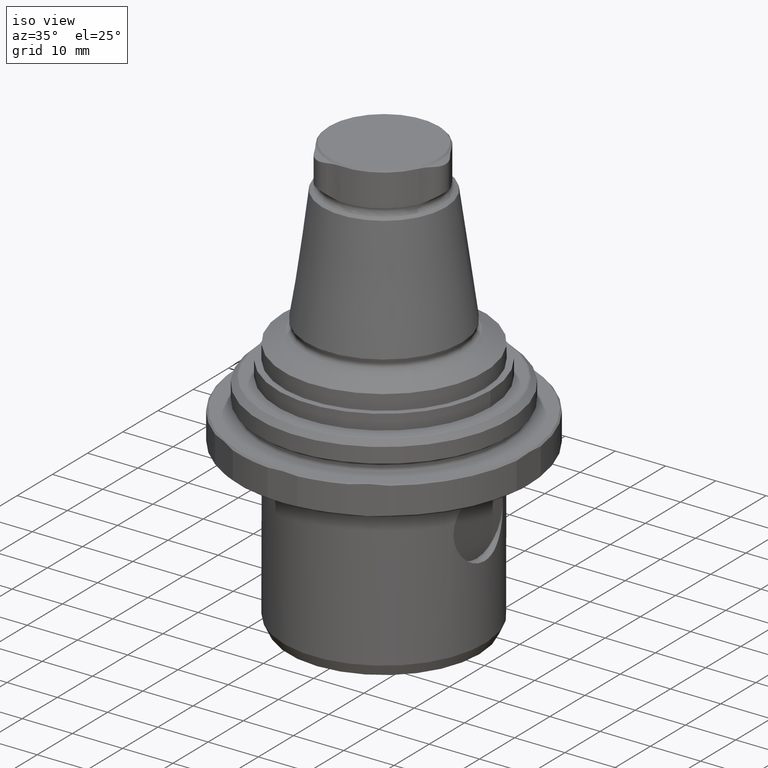
[diagram: clean part render]
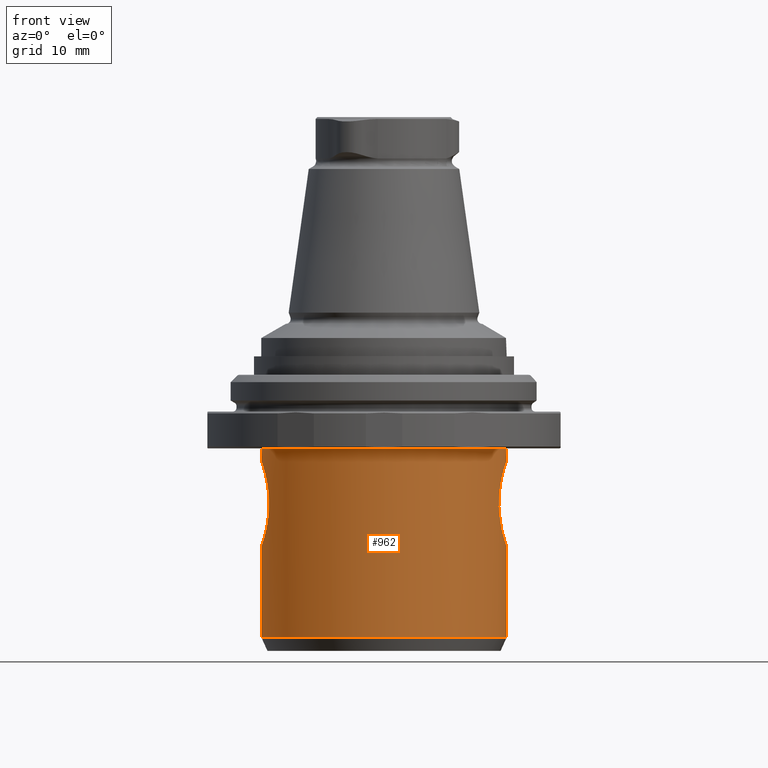
[diagram: tour spotlight — one face highlighted and labeled with its STEP entity id]
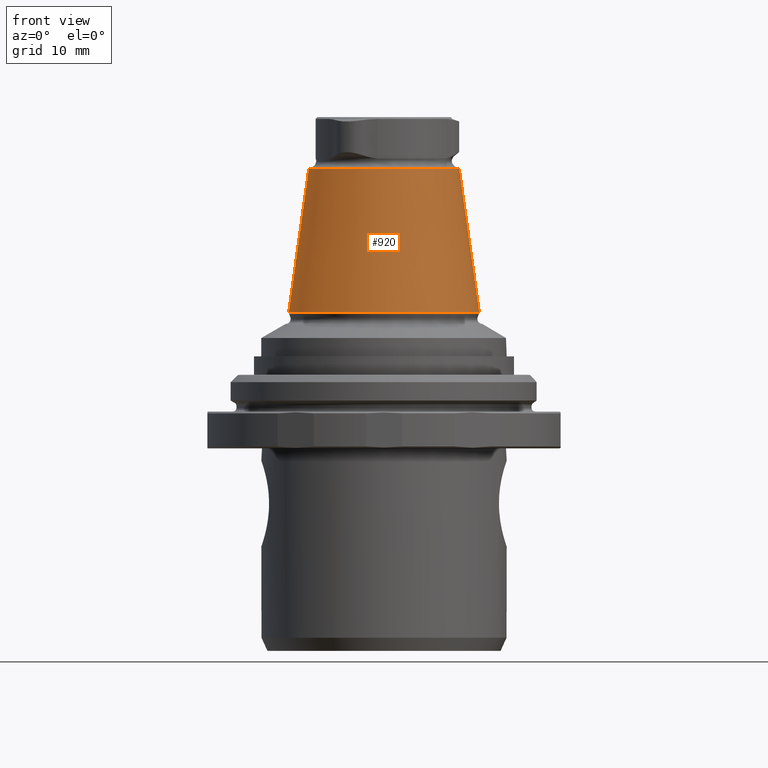
[diagram: tour spotlight — one face highlighted and labeled with its STEP entity id]
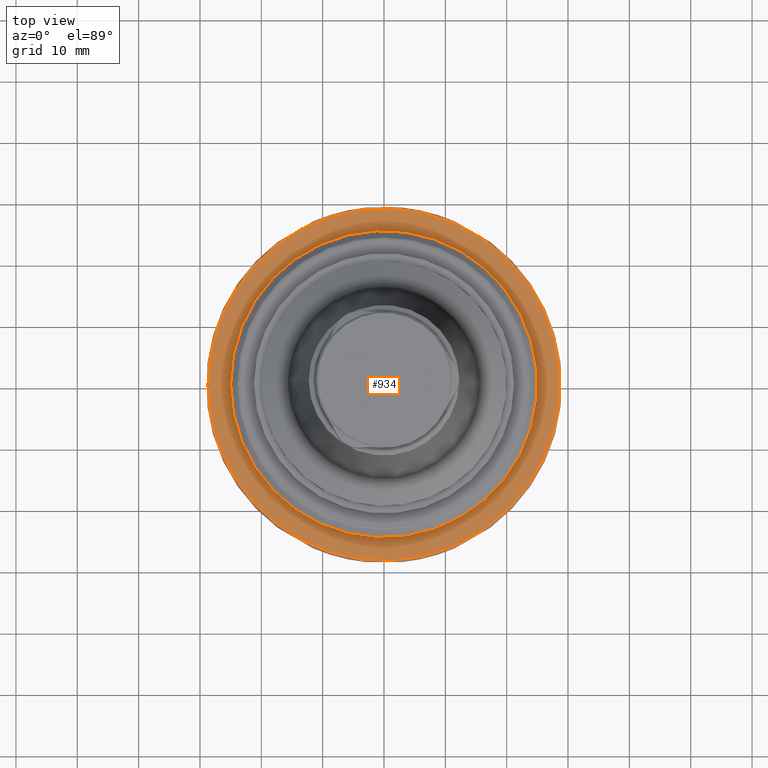
[diagram: tour spotlight — one face highlighted and labeled with its STEP entity id]
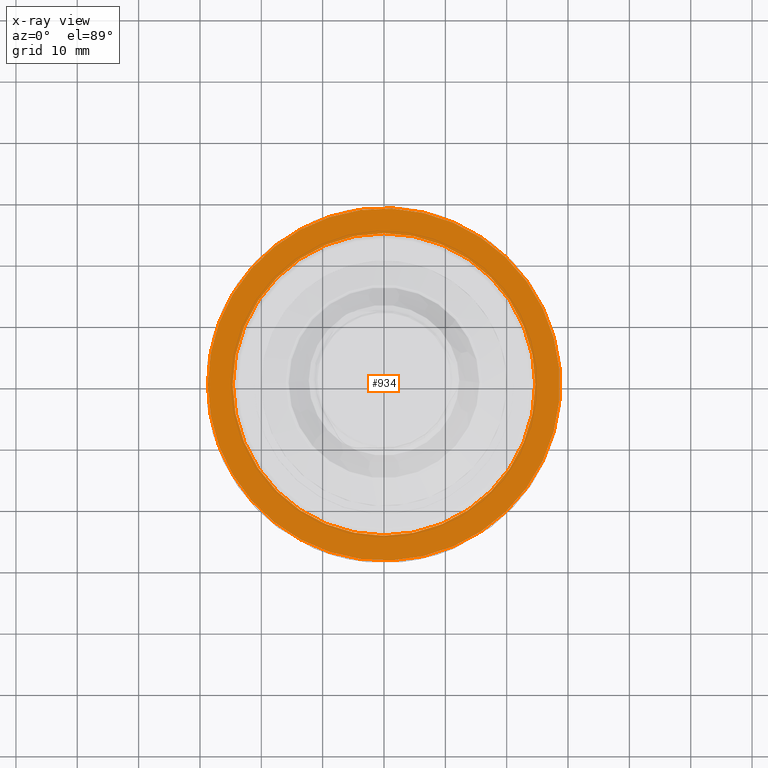
[diagram: x-ray of the same camera — body ghosted, this tour face saturated]
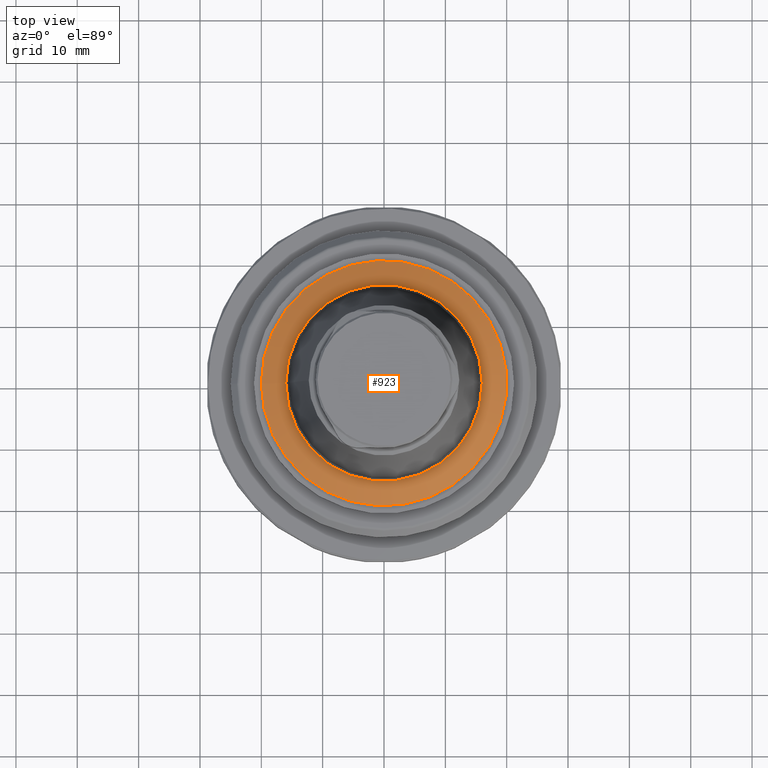
[diagram: tour spotlight — one face highlighted and labeled with its STEP entity id]
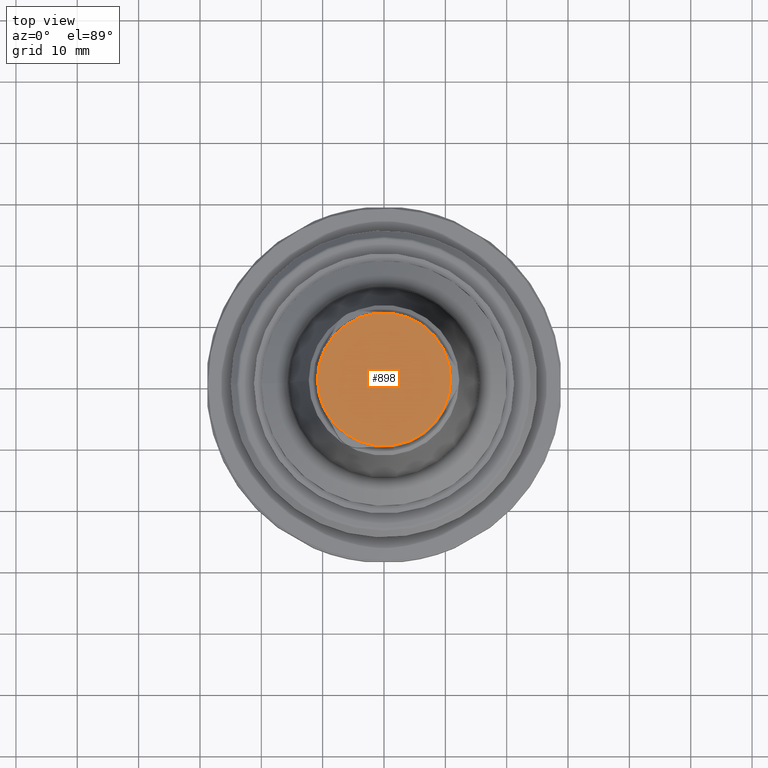
[diagram: tour spotlight — one face highlighted and labeled with its STEP entity id]
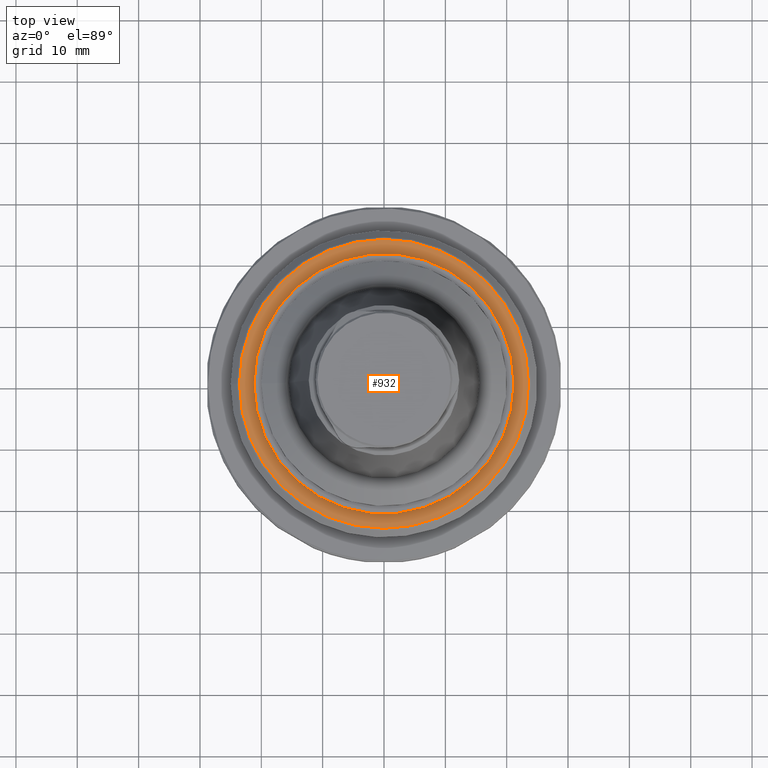
[diagram: tour spotlight — one face highlighted and labeled with its STEP entity id]
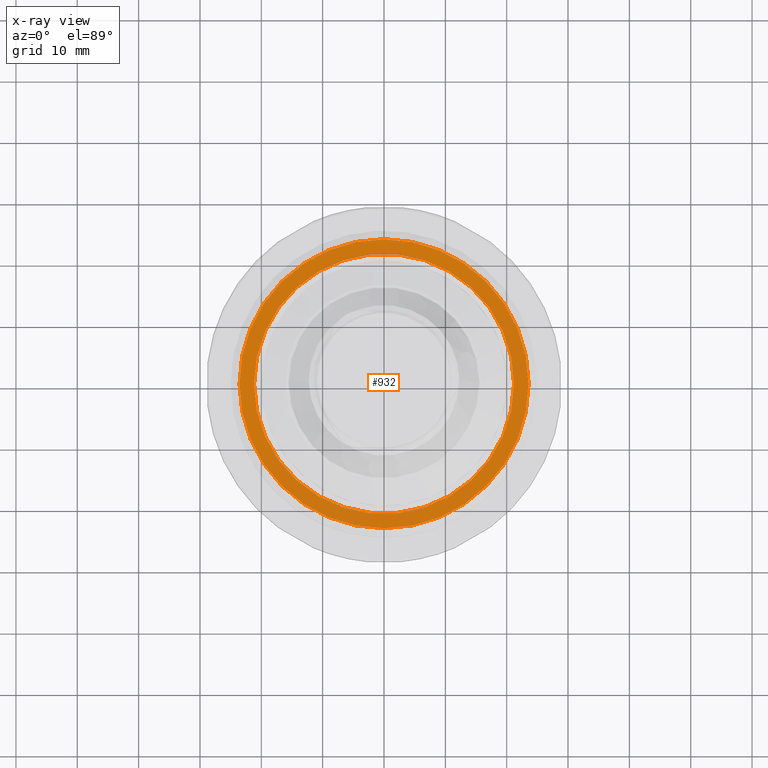
[diagram: x-ray of the same camera — body ghosted, this tour face saturated]
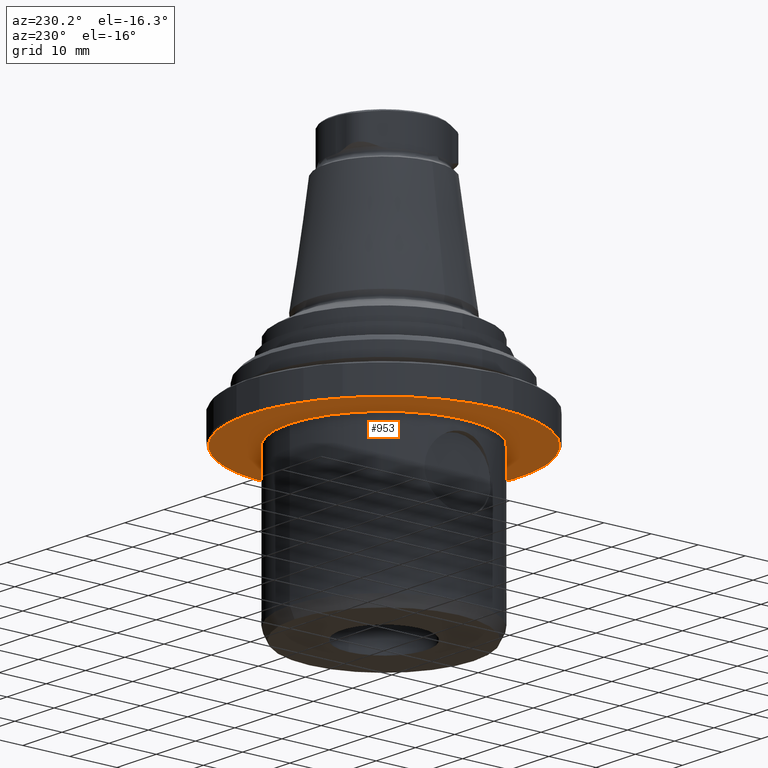
[diagram: tour spotlight — one face highlighted and labeled with its STEP entity id]
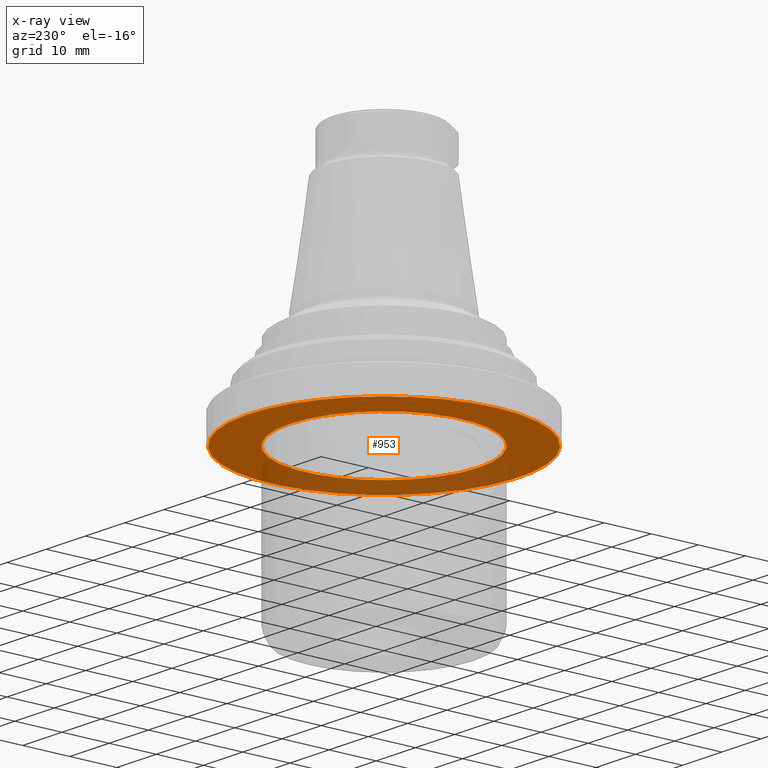
[diagram: x-ray of the same camera — body ghosted, this tour face saturated]
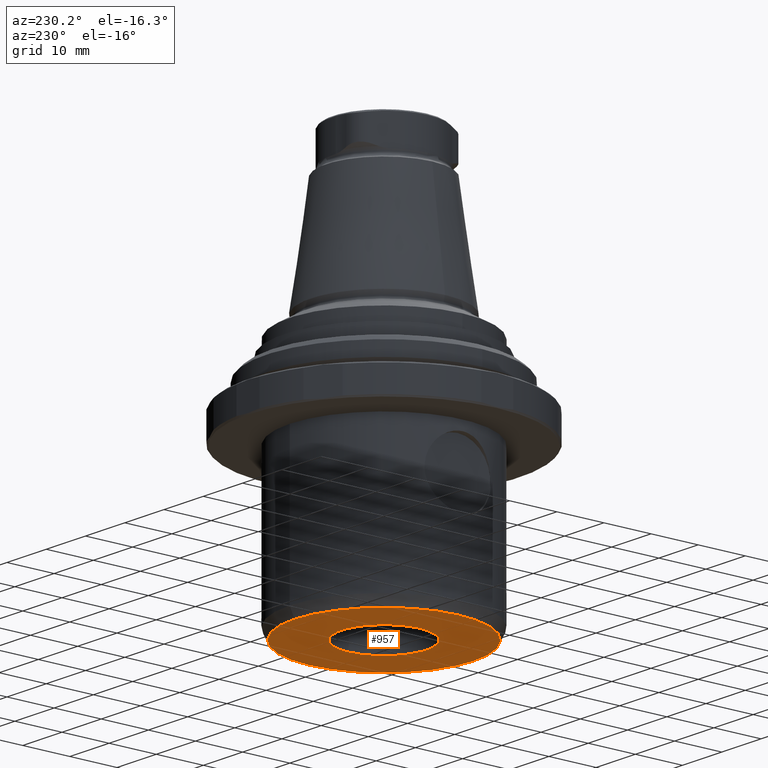
[diagram: tour spotlight — one face highlighted and labeled with its STEP entity id]
A machine part: a face-by-face anatomy tour. The part has 66 B-rep faces; the first image is the clean iso view, then the 8 largest visible faces are spotlighted one at a time (largest first), each with its STEP entity span.

Face 1 — front view, entity #962. In plain terms, the highlighted cylindrical surface (bore or boss wall) has radius 20 mm, axis along (-0, -0, -1).
Definition (entity closure, byte-faithful):
#81=B_SPLINE_CURVE_WITH_KNOTS('',3,(#1769,#1770,#1771,#1772,#1773,#1774,
#1775,#1776,#1777,#1778,#1779,#1780,#1781,#1782,#1783,#1784,#1785,#1786,
#1787),.UNSPECIFIED.,.T.,.F.,(1,1,1,1,1,1,1,1,1,1,1,1,1,1,1,1,1,1,1,1,1,
1,1),(-0.00827466381188693,-0.00551644254125795,-0.00275822127062898,2.52141285934197E-19,
0.00275822127062897,0.00551644254125795,0.00827466381188692,0.0110328850825159,
0.0137911063531449,0.0165493276237738,0.0193075488944028,0.0220657701650318,
0.0248239914356608,0.0275822127062897,0.0303404339769187,0.0330986552475477,
0.0358568765181767,0.0386150977888056,0.0413733190594346,0.0441315403300636,
0.0468897616006926,0.0496479828713215,0.0524062041419505),.UNSPECIFIED.);
#82=B_SPLINE_CURVE_WITH_KNOTS('',3,(#1793,#1794,#1795,#1796,#1797,#1798,
#1799,#1800,#1801,#1802,#1803,#1804,#1805,#1806,#1807,#1808,#1809,#1810,
#1811),.UNSPECIFIED.,.T.,.F.,(1,1,1,1,1,1,1,1,1,1,1,1,1,1,1,1,1,1,1,1,1,
1,1),(-0.0082719945717819,-0.0055146630478546,-0.0027573315239273,3.59097554895462E-20,
0.0027573315239273,0.0055146630478546,0.0082719945717819,0.0110293260957092,
0.0137866576196365,0.0165439891435638,0.0193013206674911,0.0220586521914184,
0.0248159837153457,0.027573315239273,0.0303306467632003,0.0330879782871276,
0.0358453098110549,0.0386026413349822,0.0413599728589095,0.0441173043828368,
0.0468746359067641,0.0496319674306914,0.0523892989546187),.UNSPECIFIED.);
#402=ORIENTED_EDGE('',*,*,#530,.F.);
#403=ORIENTED_EDGE('',*,*,#529,.F.);
#404=ORIENTED_EDGE('',*,*,#528,.T.);
#405=ORIENTED_EDGE('',*,*,#522,.T.);
#522=EDGE_CURVE('',#613,#613,#670,.T.);
#528=EDGE_CURVE('',#619,#619,#81,.T.);
#529=EDGE_CURVE('',#620,#620,#676,.T.);
#530=EDGE_CURVE('',#621,#621,#82,.T.);
#613=VERTEX_POINT('',#1752);
#619=VERTEX_POINT('',#1788);
#620=VERTEX_POINT('',#1791);
#621=VERTEX_POINT('',#1812);
#670=CIRCLE('',#1081,20.);
#676=CIRCLE('',#1094,20.);
#769=EDGE_LOOP('',(#402));
#770=EDGE_LOOP('',(#403));
#771=EDGE_LOOP('',(#404));
#772=EDGE_LOOP('',(#405));
#865=FACE_BOUND('',#769,.T.);
#866=FACE_BOUND('',#770,.T.);
#867=FACE_BOUND('',#771,.T.);
#868=FACE_BOUND('',#772,.T.);
#896=CYLINDRICAL_SURFACE('',#1096,20.);
#962=ADVANCED_FACE('',(#865,#866,#867,#868),#896,.T.);
#1081=AXIS2_PLACEMENT_3D('',#1751,#1337,#1338);
#1094=AXIS2_PLACEMENT_3D('',#1790,#1363,#1364);
#1096=AXIS2_PLACEMENT_3D('',#1813,#1367,#1368);
#1337=DIRECTION('',(-5.47430718319515E-16,0.,-1.));
#1338=DIRECTION('',(0.,-1.,0.));
#1363=DIRECTION('',(-5.47430718319515E-16,-8.51929311524195E-24,-1.));
#1364=DIRECTION('',(-6.38378239159465E-16,1.,-3.83055215771257E-23));
#1367=DIRECTION('',(-5.47430718319515E-16,-8.51929311524195E-24,-1.));
#1368=DIRECTION('',(-6.38378239159465E-16,1.,-3.83055215771257E-23));
#1751=CARTESIAN_POINT('',(-9.75936719880949E-14,-9.8164535210936E-14,-6.99592921435212));
#1752=CARTESIAN_POINT('',(-9.75936719880949E-14,-20.0000000000001,-6.99592921435212));
#1769=CARTESIAN_POINT('',(19.8646762557931,2.77027417162864,-22.6252320284249));
#1770=CARTESIAN_POINT('',(20.0676875238819,0.000442284099642812,-23.1938391832771));
#1771=CARTESIAN_POINT('',(19.8645736486786,-2.77204330802721,-22.6250120990173));
#1772=CARTESIAN_POINT('',(19.3810291166968,-5.07155984984812,-21.0585363112863));
#1773=CARTESIAN_POINT('',(18.8845725861041,-6.6154157599361,-18.7520702424439));
#1774=CARTESIAN_POINT('',(18.6625231501187,-7.18582964320087,-15.9927262764479));
#1775=CARTESIAN_POINT('',(18.8754846384484,-6.64076823949129,-13.2165164205142));
#1776=CARTESIAN_POINT('',(19.3787521418714,-5.08328236917156,-10.9040592612274));
#1777=CARTESIAN_POINT('',(19.8652500949955,-2.76836429511371,-9.3637754078637));
#1778=CARTESIAN_POINT('',(20.0672619189513,-0.00252766068244912,-8.81206947318763));
#1779=CARTESIAN_POINT('',(19.8657016692458,2.76688232386953,-9.36234742012205));
#1780=CARTESIAN_POINT('',(19.378122375111,5.08560578391084,-10.9062015653983));
#1781=CARTESIAN_POINT('',(18.8758801861452,6.63949104038356,-13.2158760418646));
#1782=CARTESIAN_POINT('',(18.6624751881199,7.18597032612477,-15.9867567205143));
#1783=CARTESIAN_POINT('',(18.8843276180981,6.61624068030539,-18.7524555909608));
#1784=CARTESIAN_POINT('',(19.3818414543827,5.06875163541888,-21.061451916891));
#1785=CARTESIAN_POINT('',(19.8646762557931,2.77027417162864,-22.6252320284249));
#1786=CARTESIAN_POINT('',(20.0676875238819,0.000442284099642812,-23.1938391832771));
#1787=CARTESIAN_POINT('',(19.8645736486786,-2.77204330802721,-22.6250120990173));
#1788=CARTESIAN_POINT('',(19.9999999999999,-2.59796298523195E-16,-23.0042668100917));
#1790=CARTESIAN_POINT('',(-1.14487145201815E-13,-9.81645354738377E-14,-37.8554930794905));
#1791=CARTESIAN_POINT('',(-1.27254709985004E-13,19.9999999999999,-37.8554930794905));
#1793=CARTESIAN_POINT('',(-19.864959193373,2.7695832460966,-22.6267435874136));
#1794=CARTESIAN_POINT('',(-20.0675530394528,0.000455299376661002,-23.1867058637637));
#1795=CARTESIAN_POINT('',(-19.8648286488163,-2.77140444360324,-22.6264329575314));
#1796=CARTESIAN_POINT('',(-19.3795925254786,-5.07818285233168,-21.072833720461));
#1797=CARTESIAN_POINT('',(-18.8807534308338,-6.62602104875969,-18.769040289438));
#1798=CARTESIAN_POINT('',(-18.6623765403538,-7.18620834303159,-16.0066640654448));
#1799=CARTESIAN_POINT('',(-18.8797083173974,-6.6291350380704,-13.2340599194976));
#1800=CARTESIAN_POINT('',(-19.3807301173564,-5.07463924481913,-10.9228407716827));
#1801=CARTESIAN_POINT('',(-19.8651189238932,-2.76760798580903,-9.37290771875308));
#1802=CARTESIAN_POINT('',(-20.0672811595736,-0.00335678219338574,-8.81404045188826));
#1803=CARTESIAN_POINT('',(-19.8657553843001,2.76513407296646,-9.37093348373109));
#1804=CARTESIAN_POINT('',(-19.3801228451577,5.07696742894391,-10.9247927099749));
#1805=CARTESIAN_POINT('',(-18.8800361574798,6.62803079603399,-13.2339608604058));
#1806=CARTESIAN_POINT('',(-18.6624071808983,7.18614536274945,-15.9999377427822));
#1807=CARTESIAN_POINT('',(-18.8802991046361,6.62738771405926,-18.768096027815));
#1808=CARTESIAN_POINT('',(-19.3802025510409,5.07622574285912,-21.0750639215115));
#1809=CARTESIAN_POINT('',(-19.864959193373,2.7695832460966,-22.6267435874136));
#1810=CARTESIAN_POINT('',(-20.0675530394528,0.000455299376661002,-23.1867058637637));
#1811=CARTESIAN_POINT('',(-19.8648286488163,-2.77140444360324,-22.6264329575314));
#1812=CARTESIAN_POINT('',(-20.0000000000001,3.69928773177381E-17,-23.));
#1813=CARTESIAN_POINT('',(-1.20038331439195E-13,-9.8164535560227E-14,-47.9959292143521));

Face 2 — front view, entity #920. In plain terms, the highlighted conical surface has half-angle 7.95 deg.
Definition (entity closure, byte-faithful):
#33=CONICAL_SURFACE('',#1016,15.5400379337869,0.13875367553355);
#259=ORIENTED_EDGE('',*,*,#458,.T.);
#260=ORIENTED_EDGE('',*,*,#459,.F.);
#458=EDGE_CURVE('',#565,#565,#638,.T.);
#459=EDGE_CURVE('',#566,#566,#639,.T.);
#565=VERTEX_POINT('',#1558);
#566=VERTEX_POINT('',#1561);
#638=CIRCLE('',#1015,12.2706905250473);
#639=CIRCLE('',#1017,15.5400379337869);
#704=EDGE_LOOP('',(#259));
#705=EDGE_LOOP('',(#260));
#800=FACE_BOUND('',#704,.T.);
#801=FACE_BOUND('',#705,.T.);
#920=ADVANCED_FACE('',(#800,#801),#33,.T.);
#1015=AXIS2_PLACEMENT_3D('',#1557,#1189,#1190);
#1016=AXIS2_PLACEMENT_3D('',#1559,#1191,#1192);
#1017=AXIS2_PLACEMENT_3D('',#1560,#1193,#1194);
#1189=DIRECTION('',(-4.20111564119382E-16,-8.51929323965368E-24,-1.));
#1190=DIRECTION('',(-1.,9.77164313006873E-16,4.20111561806759E-16));
#1191=DIRECTION('',(-4.20111564119382E-16,-8.51929323965368E-24,-1.));
#1192=DIRECTION('',(-1.,9.77164313006873E-16,4.20111561806759E-16));
#1193=DIRECTION('',(-4.20111564119382E-16,-8.51929323965368E-24,-1.));
#1194=DIRECTION('',(-1.,9.77164313006873E-16,4.20111561806759E-16));
#1557=CARTESIAN_POINT('',(-7.15208266342396E-14,-9.81645348229254E-14,38.549));
#1558=CARTESIAN_POINT('',(-12.2706905250474,-8.61740539458976E-14,38.549));
#1559=CARTESIAN_POINT('',(-8.13559888389649E-14,-9.81645350223692E-14,15.1381657247255));
#1560=CARTESIAN_POINT('',(-8.13559888389649E-14,-9.81645350223692E-14,15.1381657247255));
#1561=CARTESIAN_POINT('',(-15.540037933787,-8.29793645306995E-14,15.1381657247255));

Face 3 — top view, entity #934. An x-ray twin of the same camera follows (body ghosted, this face saturated) — the face is partly hidden behind the body. In plain terms, the highlighted planar face has unit normal (-0, -0, -1).
Definition (entity closure, byte-faithful):
#142=PLANE('',#1043);
#287=ORIENTED_EDGE('',*,*,#471,.T.);
#288=ORIENTED_EDGE('',*,*,#472,.F.);
#471=EDGE_CURVE('',#578,#578,#651,.T.);
#472=EDGE_CURVE('',#579,#579,#652,.T.);
#578=VERTEX_POINT('',#1598);
#579=VERTEX_POINT('',#1601);
#651=CIRCLE('',#1042,24.65);
#652=CIRCLE('',#1044,28.7);
#732=EDGE_LOOP('',(#287));
#733=EDGE_LOOP('',(#288));
#828=FACE_BOUND('',#732,.T.);
#829=FACE_BOUND('',#733,.T.);
#934=ADVANCED_FACE('',(#828,#829),#142,.F.);
#1042=AXIS2_PLACEMENT_3D('',#1597,#1243,#1244);
#1043=AXIS2_PLACEMENT_3D('',#1599,#1245,#1246);
#1044=AXIS2_PLACEMENT_3D('',#1600,#1247,#1248);
#1243=DIRECTION('',(-5.47430718319515E-16,-4.76420379815137E-18,-1.));
#1244=DIRECTION('',(-1.,9.15933995315755E-16,5.47430716006892E-16));
#1245=DIRECTION('',(-5.47430718319515E-16,-4.76420379815137E-18,-1.));
#1246=DIRECTION('',(-1.,9.15933995315755E-16,5.47430716006892E-16));
#1247=DIRECTION('',(-5.47430718319515E-16,-4.76420379815137E-18,-1.));
#1248=DIRECTION('',(-1.,9.15933995315755E-16,5.47430716006892E-16));
#1597=CARTESIAN_POINT('',(-9.43090876781778E-14,-9.81645351598202E-14,-0.995929214352119));
#1598=CARTESIAN_POINT('',(-24.6500000000001,-7.55867621752869E-14,-0.995929214352106));
#1599=CARTESIAN_POINT('',(-24.6500000000001,-7.55867621752869E-14,-0.995929214352106));
#1600=CARTESIAN_POINT('',(-9.43090876781778E-14,-9.81645351598202E-14,-0.995929214352119));
#1601=CARTESIAN_POINT('',(-28.7000000000001,-7.18772294942581E-14,-0.995929214352104));

Face 4 — top view, entity #923. In plain terms, the highlighted conical surface has half-angle 60 deg.
Definition (entity closure, byte-faithful):
#35=CONICAL_SURFACE('',#1022,20.,1.0471975511966);
#265=ORIENTED_EDGE('',*,*,#461,.T.);
#266=ORIENTED_EDGE('',*,*,#406,.F.);
#406=EDGE_CURVE('',#531,#531,#622,.T.);
#461=EDGE_CURVE('',#568,#568,#641,.T.);
#531=VERTEX_POINT('',#1372);
#568=VERTEX_POINT('',#1567);
#622=CIRCLE('',#977,20.);
#641=CIRCLE('',#1021,16.0162831425916);
#710=EDGE_LOOP('',(#265));
#711=EDGE_LOOP('',(#266));
#806=FACE_BOUND('',#710,.T.);
#807=FACE_BOUND('',#711,.T.);
#923=ADVANCED_FACE('',(#806,#807),#35,.T.);
#977=AXIS2_PLACEMENT_3D('',#1371,#1101,#1102);
#1021=AXIS2_PLACEMENT_3D('',#1566,#1201,#1202);
#1022=AXIS2_PLACEMENT_3D('',#1568,#1203,#1204);
#1101=DIRECTION('',(-4.20111564119382E-16,-8.51929323965368E-24,-1.));
#1102=DIRECTION('',(-1.,9.77164313006873E-16,4.20111561806759E-16));
#1201=DIRECTION('',(-4.20111564119382E-16,-8.51929323965368E-24,-1.));
#1202=DIRECTION('',(-1.,9.77164313006873E-16,4.20111561806759E-16));
#1203=DIRECTION('',(-4.20111564119382E-16,-8.51929323965368E-24,-1.));
#1204=DIRECTION('',(-1.,9.77164313006873E-16,4.20111561806759E-16));
#1371=CARTESIAN_POINT('',(-8.30927699300388E-14,-9.81645350575887E-14,11.0040707856479));
#1372=CARTESIAN_POINT('',(-20.0000000000001,-7.86212487974513E-14,11.0040707856479));
#1566=CARTESIAN_POINT('',(-8.21265133325642E-14,-9.81645350379943E-14,13.3040707856479));
#1567=CARTESIAN_POINT('',(-16.0162831425917,-8.25139947240403E-14,13.3040707856479));
#1568=CARTESIAN_POINT('',(-8.30927699300388E-14,-9.81645350575887E-14,11.0040707856479));

Face 5 — top view, entity #898. In plain terms, the highlighted planar face has unit normal (0, 0, 1).
Definition (entity closure, byte-faithful):
#139=PLANE('',#979);
#158=ORIENTED_EDGE('',*,*,#408,.F.);
#408=EDGE_CURVE('',#533,#533,#624,.T.);
#533=VERTEX_POINT('',#1377);
#624=CIRCLE('',#980,10.85);
#679=EDGE_LOOP('',(#158));
#775=FACE_BOUND('',#679,.T.);
#898=ADVANCED_FACE('',(#775),#139,.T.);
#979=AXIS2_PLACEMENT_3D('',#1375,#1105,#1106);
#980=AXIS2_PLACEMENT_3D('',#1376,#1107,#1108);
#1105=DIRECTION('',(4.20111564119382E-16,8.51929323965368E-24,1.));
#1106=DIRECTION('',(1.,-9.77164313006873E-16,-4.20111561806759E-16));
#1107=DIRECTION('',(-4.20111564119382E-16,-8.51929323965368E-24,-1.));
#1108=DIRECTION('',(-1.,9.77164313006873E-16,4.20111561806759E-16));
#1375=CARTESIAN_POINT('',(-10.8500000000001,-8.75623019548043E-14,47.));
#1376=CARTESIAN_POINT('',(-6.79704638058667E-14,-9.81645347509288E-14,47.));
#1377=CARTESIAN_POINT('',(-10.8500000000001,-8.75623019548043E-14,47.));

Face 6 — top view, entity #932. An x-ray twin of the same camera follows (body ghosted, this face saturated) — the face is partly hidden behind the body. In plain terms, the highlighted planar face has unit normal (-0, -0, -1).
Definition (entity closure, byte-faithful):
#141=PLANE('',#1040);
#283=ORIENTED_EDGE('',*,*,#470,.F.);
#284=ORIENTED_EDGE('',*,*,#469,.F.);
#469=EDGE_CURVE('',#576,#576,#649,.T.);
#470=EDGE_CURVE('',#577,#577,#650,.T.);
#576=VERTEX_POINT('',#1591);
#577=VERTEX_POINT('',#1594);
#649=CIRCLE('',#1037,23.5524710292422);
#650=CIRCLE('',#1039,21.2);
#728=EDGE_LOOP('',(#283));
#729=EDGE_LOOP('',(#284));
#824=FACE_BOUND('',#728,.T.);
#825=FACE_BOUND('',#729,.T.);
#932=ADVANCED_FACE('',(#824,#825),#141,.F.);
#1037=AXIS2_PLACEMENT_3D('',#1590,#1233,#1234);
#1039=AXIS2_PLACEMENT_3D('',#1593,#1237,#1238);
#1040=AXIS2_PLACEMENT_3D('',#1595,#1239,#1240);
#1233=DIRECTION('',(-5.47430718319515E-16,-4.76420379815137E-18,-1.));
#1234=DIRECTION('',(-1.,9.15933995315755E-16,5.47430716006892E-16));
#1237=DIRECTION('',(5.5264198129461E-16,5.34134317477693E-17,1.));
#1238=DIRECTION('',(1.,-9.77164313006873E-16,-5.58279830278911E-16));
#1239=DIRECTION('',(-5.47430718319515E-16,-4.76420379815137E-18,-1.));
#1240=DIRECTION('',(-1.,9.15933995315755E-16,5.47430716006892E-16));
#1590=CARTESIAN_POINT('',(-9.10245033682607E-14,-9.81359499370313E-14,5.00407078564789));
#1591=CARTESIAN_POINT('',(-23.5524710292423,-7.65634410476589E-14,5.0040707856479));
#1593=CARTESIAN_POINT('',(-8.56134393147551E-14,-9.81645351087045E-14,5.00407078564789));
#1594=CARTESIAN_POINT('',(21.1999999999999,-1.1888041854445E-13,5.00407078564788));
#1595=CARTESIAN_POINT('',(-9.10245033682607E-14,-9.81359499370313E-14,5.00407078564789));

Face 7 — auxiliary view, entity #953. An x-ray twin of the same camera follows (body ghosted, this face saturated) — the face is partly hidden behind the body. In plain terms, the highlighted planar face has unit normal (0, 0, 1).
Definition (entity closure, byte-faithful):
#151=PLANE('',#1080);
#387=ORIENTED_EDGE('',*,*,#521,.T.);
#388=ORIENTED_EDGE('',*,*,#522,.F.);
#521=EDGE_CURVE('',#612,#612,#669,.T.);
#522=EDGE_CURVE('',#613,#613,#670,.T.);
#612=VERTEX_POINT('',#1749);
#613=VERTEX_POINT('',#1752);
#669=CIRCLE('',#1079,28.7);
#670=CIRCLE('',#1081,20.);
#754=EDGE_LOOP('',(#387));
#755=EDGE_LOOP('',(#388));
#850=FACE_BOUND('',#754,.T.);
#851=FACE_BOUND('',#755,.T.);
#953=ADVANCED_FACE('',(#850,#851),#151,.F.);
#1079=AXIS2_PLACEMENT_3D('',#1748,#1333,#1334);
#1080=AXIS2_PLACEMENT_3D('',#1750,#1335,#1336);
#1081=AXIS2_PLACEMENT_3D('',#1751,#1337,#1338);
#1333=DIRECTION('',(-5.47430718319515E-16,-4.76420379815137E-18,-1.));
#1334=DIRECTION('',(-1.,9.15933995315755E-16,5.47430716006892E-16));
#1335=DIRECTION('',(5.47430718319515E-16,4.76420379815137E-18,1.));
#1336=DIRECTION('',(1.,-9.15933995315755E-16,-5.47430716006892E-16));
#1337=DIRECTION('',(-5.47430718319515E-16,0.,-1.));
#1338=DIRECTION('',(0.,-1.,0.));
#1748=CARTESIAN_POINT('',(-9.75936719880949E-14,-9.81931203826092E-14,-6.99592921435212));
#1749=CARTESIAN_POINT('',(-28.7000000000001,-7.1905814717047E-14,-6.9959292143521));
#1750=CARTESIAN_POINT('',(-28.7000000000001,-7.1905814717047E-14,-6.9959292143521));
#1751=CARTESIAN_POINT('',(-9.75936719880949E-14,-9.8164535210936E-14,-6.99592921435212));
#1752=CARTESIAN_POINT('',(-9.75936719880949E-14,-20.0000000000001,-6.99592921435212));

Face 8 — auxiliary view, entity #957. In plain terms, the highlighted planar face has unit normal (-0, -0, -1).
Definition (entity closure, byte-faithful):
#154=PLANE('',#1088);
#393=ORIENTED_EDGE('',*,*,#524,.T.);
#394=ORIENTED_EDGE('',*,*,#526,.T.);
#524=EDGE_CURVE('',#615,#615,#672,.T.);
#526=EDGE_CURVE('',#617,#617,#674,.T.);
#615=VERTEX_POINT('',#1758);
#617=VERTEX_POINT('',#1764);
#672=CIRCLE('',#1085,8.99999999999988);
#674=CIRCLE('',#1089,19.);
#760=EDGE_LOOP('',(#393));
#761=EDGE_LOOP('',(#394));
#856=FACE_BOUND('',#760,.T.);
#857=FACE_BOUND('',#761,.T.);
#957=ADVANCED_FACE('',(#856,#857),#154,.T.);
#1085=AXIS2_PLACEMENT_3D('',#1757,#1345,#1346);
#1088=AXIS2_PLACEMENT_3D('',#1762,#1351,#1352);
#1089=AXIS2_PLACEMENT_3D('',#1763,#1353,#1354);
#1345=DIRECTION('',(0.,0.,1.));
#1346=DIRECTION('',(1.,0.,0.));
#1351=DIRECTION('',(-5.47430718319515E-16,-8.51929311524195E-24,-1.));
#1352=DIRECTION('',(-6.38378239159465E-16,1.,-3.83055215771257E-23));
#1353=DIRECTION('',(-5.47430718319515E-16,-8.51929311524195E-24,-1.));
#1354=DIRECTION('',(-6.38378239159465E-16,1.,-3.83055215771257E-23));
#1757=CARTESIAN_POINT('',(0.,0.,-40.));
#1758=CARTESIAN_POINT('',(8.99999999999988,0.,-40.));
#1762=CARTESIAN_POINT('',(-1.2779030070978E-13,18.9999999999999,-40.));
#1763=CARTESIAN_POINT('',(-1.1566111416575E-13,-9.81645354921073E-14,-40.));
#1764=CARTESIAN_POINT('',(-1.2779030070978E-13,18.9999999999999,-40.));